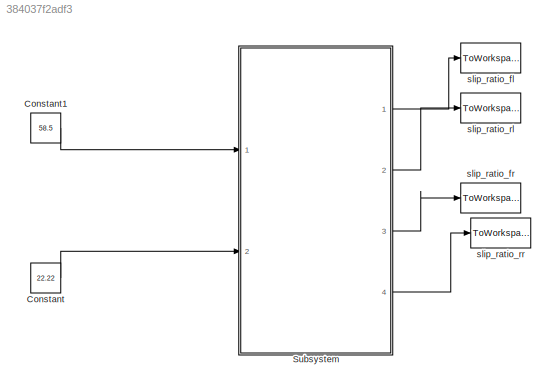
MODEL slx_384037f2adf3
KIND model
CONFIG AbsTol = auto
CONFIG FixedStep = auto
CONFIG MaxStep = auto
CONFIG MinStep = auto
CONFIG RelTol = 1e-3
CONFIG SampleTimeConstraint = Unconstrained
CONFIG Solver = ode3
CONFIG SolverMode = Auto
CONFIG SolverName = ode3
CONFIG StartTime = 0.0
CONFIG StopTime = 10.0
BLOCK [Constant] Constant
  Value = 22.22
BLOCK [Constant] Constant1
  Value = 58.5
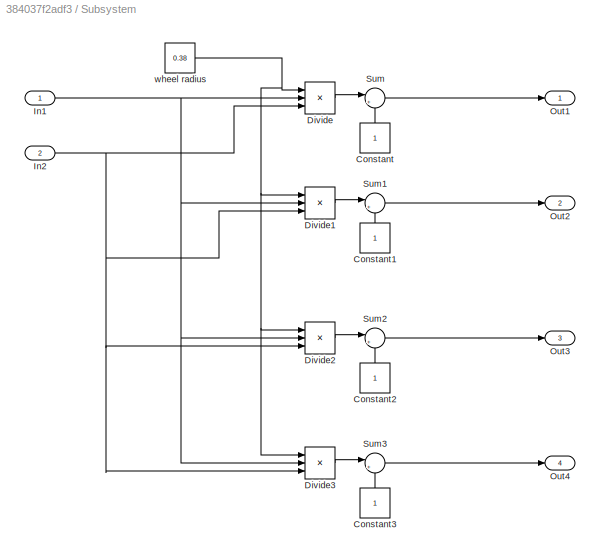
BLOCK [SubSystem] Subsystem
  Ports = [2, 4]
  RequestExecContextInheritance = off
BLOCK [Constant] Subsystem/Constant
BLOCK [Constant] Subsystem/Constant1
BLOCK [Constant] Subsystem/Constant2
BLOCK [Constant] Subsystem/Constant3
BLOCK [Product] Subsystem/Divide
  InputSameDT = off
  Inputs = **/
  OutDataTypeStr = Inherit: Inherit via internal rule
  Ports = [3, 1]
  RndMeth = Floor
  SaturateOnIntegerOverflow = off
BLOCK [Product] Subsystem/Divide1
  InputSameDT = off
  Inputs = **/
  OutDataTypeStr = Inherit: Inherit via internal rule
  Ports = [3, 1]
  RndMeth = Floor
  SaturateOnIntegerOverflow = off
BLOCK [Product] Subsystem/Divide2
  InputSameDT = off
  Inputs = **/
  OutDataTypeStr = Inherit: Inherit via internal rule
  Ports = [3, 1]
  RndMeth = Floor
  SaturateOnIntegerOverflow = off
BLOCK [Product] Subsystem/Divide3
  InputSameDT = off
  Inputs = **/
  OutDataTypeStr = Inherit: Inherit via internal rule
  Ports = [3, 1]
  RndMeth = Floor
  SaturateOnIntegerOverflow = off
BLOCK [Inport] Subsystem/In1
  IconDisplay = Port number
BLOCK [Inport] Subsystem/In2
  IconDisplay = Port number
  Port = 2
BLOCK [Outport] Subsystem/Out1
  IconDisplay = Port number
BLOCK [Outport] Subsystem/Out2
  IconDisplay = Port number
  Port = 2
BLOCK [Outport] Subsystem/Out3
  IconDisplay = Port number
  Port = 3
BLOCK [Outport] Subsystem/Out4
  IconDisplay = Port number
  Port = 4
BLOCK [Sum] Subsystem/Sum
  IconShape = round
  InputSameDT = off
  Inputs = |+-
  OutDataTypeStr = Inherit: Inherit via internal rule
  Ports = [2, 1]
  SaturateOnIntegerOverflow = off
BLOCK [Sum] Subsystem/Sum1
  IconShape = round
  InputSameDT = off
  Inputs = |+-
  OutDataTypeStr = Inherit: Inherit via internal rule
  Ports = [2, 1]
  SaturateOnIntegerOverflow = off
BLOCK [Sum] Subsystem/Sum2
  IconShape = round
  InputSameDT = off
  Inputs = |+-
  OutDataTypeStr = Inherit: Inherit via internal rule
  Ports = [2, 1]
  SaturateOnIntegerOverflow = off
BLOCK [Sum] Subsystem/Sum3
  IconShape = round
  InputSameDT = off
  Inputs = |+-
  OutDataTypeStr = Inherit: Inherit via internal rule
  Ports = [2, 1]
  SaturateOnIntegerOverflow = off
BLOCK [Constant] Subsystem/wheel radius
  Value = 0.38
BLOCK [ToWorkspace] slip_ratio_fl
  FixptAsFi = on
  MaxDataPoints = inf
  Ports = [1]
  SampleTime = -1
  Save2DSignal = 3-D array (concatenate along third dimension)
  SaveFormat = Timeseries
  VariableName = slip_ratio_fl
BLOCK [ToWorkspace] slip_ratio_fr
  FixptAsFi = on
  MaxDataPoints = inf
  Ports = [1]
  SampleTime = -1
  Save2DSignal = 3-D array (concatenate along third dimension)
  SaveFormat = Timeseries
  VariableName = slip_ratio_fr
BLOCK [ToWorkspace] slip_ratio_rl
  FixptAsFi = on
  MaxDataPoints = inf
  Ports = [1]
  SampleTime = -1
  Save2DSignal = 3-D array (concatenate along third dimension)
  SaveFormat = Timeseries
  VariableName = slip_ratio_rl
BLOCK [ToWorkspace] slip_ratio_rr
  FixptAsFi = on
  MaxDataPoints = inf
  Ports = [1]
  SampleTime = -1
  Save2DSignal = 3-D array (concatenate along third dimension)
  SaveFormat = Timeseries
  VariableName = slip_ratio_rr
LINE Constant1:1 -> Subsystem:1
LINE Constant:1 -> Subsystem:2
LINE Subsystem/Constant1:1 -> Subsystem/Sum1:2
LINE Subsystem/Constant2:1 -> Subsystem/Sum2:2
LINE Subsystem/Constant3:1 -> Subsystem/Sum3:2
LINE Subsystem/Constant:1 -> Subsystem/Sum:2
LINE Subsystem/Divide1:1 -> Subsystem/Sum1:1
LINE Subsystem/Divide2:1 -> Subsystem/Sum2:1
LINE Subsystem/Divide3:1 -> Subsystem/Sum3:1
LINE Subsystem/Divide:1 -> Subsystem/Sum:1
NET Subsystem/In1:1 -> Subsystem/Divide1:2, Subsystem/Divide2:2, Subsystem/Divide3:2, Subsystem/Divide:2
NET Subsystem/In2:1 -> Subsystem/Divide1:3, Subsystem/Divide2:3, Subsystem/Divide3:3, Subsystem/Divide:3
LINE Subsystem/Sum1:1 -> Subsystem/Out2:1
LINE Subsystem/Sum2:1 -> Subsystem/Out3:1
LINE Subsystem/Sum3:1 -> Subsystem/Out4:1
LINE Subsystem/Sum:1 -> Subsystem/Out1:1
NET Subsystem/wheel radius:1 -> Subsystem/Divide1:1, Subsystem/Divide2:1, Subsystem/Divide3:1, Subsystem/Divide:1
LINE Subsystem:1 -> slip_ratio_fl:1
LINE Subsystem:2 -> slip_ratio_rl:1
LINE Subsystem:3 -> slip_ratio_fr:1
LINE Subsystem:4 -> slip_ratio_rr:1
note: NET lines group one-source signal fan-out (src -> all destinations, sorted); 1:1 wires keep LINE
